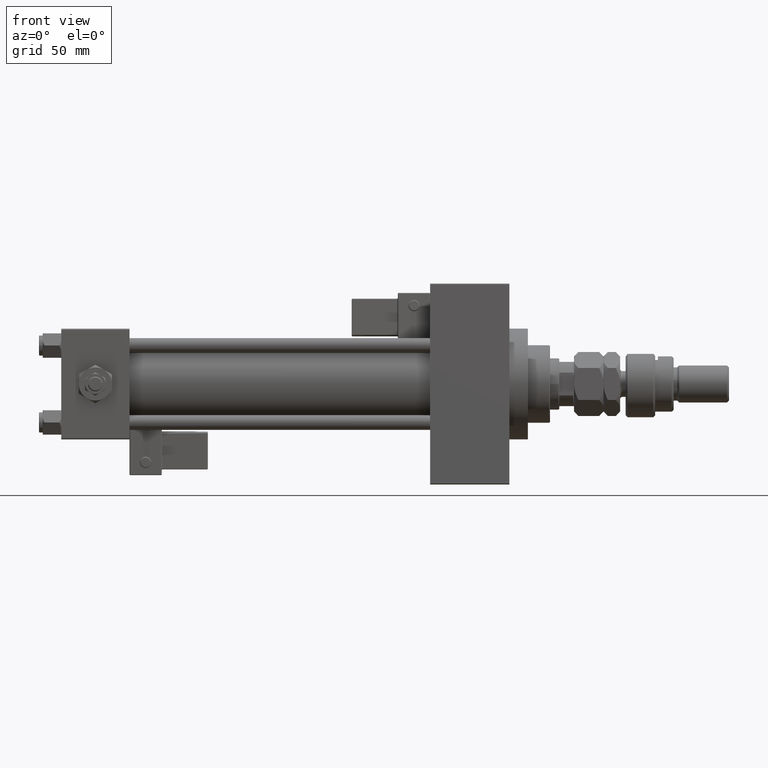
[diagram: clean part render]
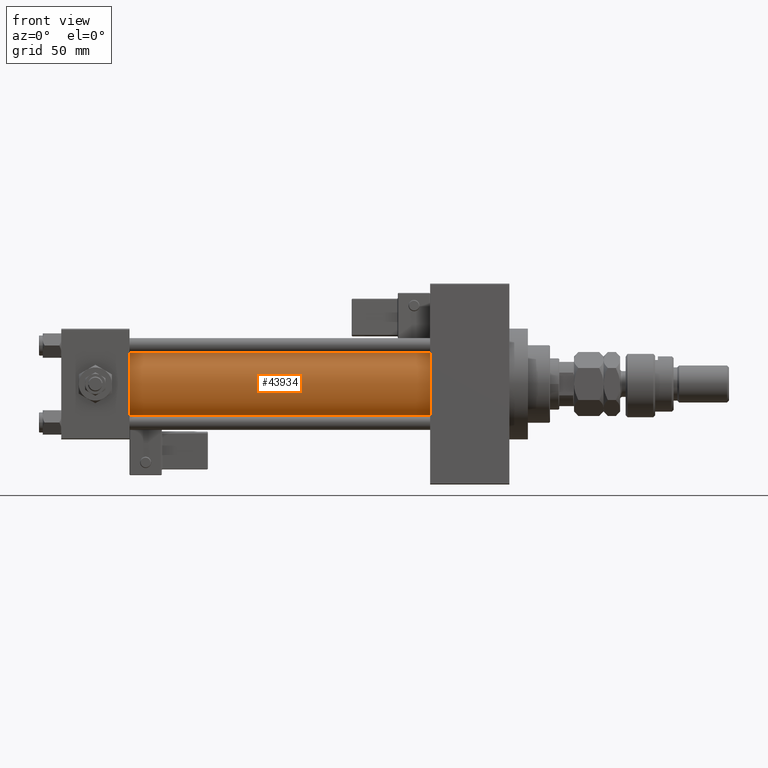
[diagram: same view with one face highlighted and labeled with its STEP entity id]
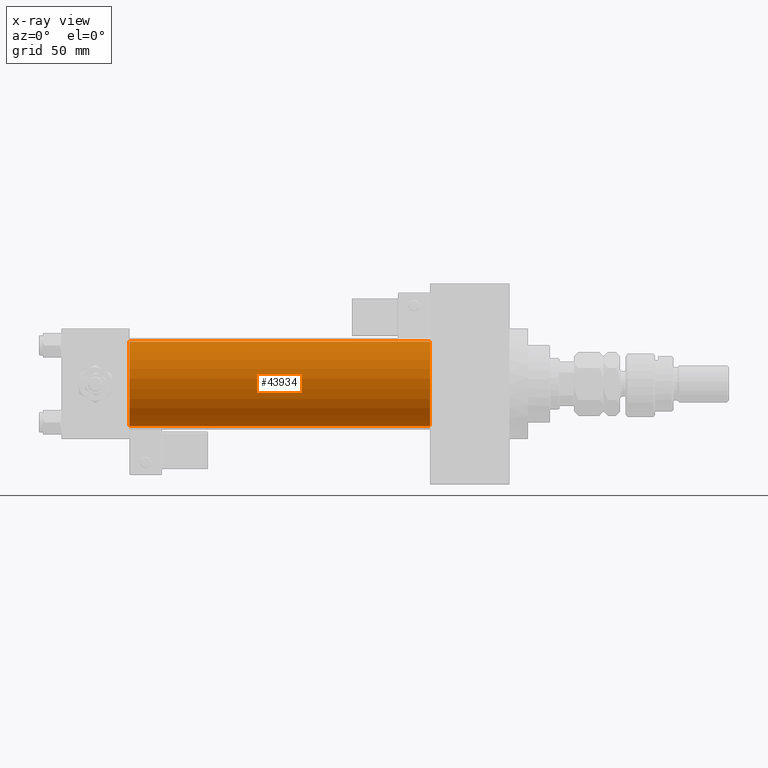
[diagram: x-ray of the same camera — body ghosted, the highlighted face saturated]
A machine part, front view. The second image highlights one B-rep face of the part: STEP entity #43934.
The next image is the same camera in x-ray: the body ghosted, the highlighted face saturated — about 0% of this face is hidden behind the body in this view.
In plain terms, the highlighted cylindrical surface (partial cylindrical patch) has radius 23 mm, axis along (-1, -0, -0).
Its self-contained STEP definition (entity closure, byte-faithful):
#477 = CARTESIAN_POINT ( 'NONE',  ( 200.0000000000000000, -2.602085213965210642E-15, 23.00000000000000000 ) ) ;
#2661 = ORIENTED_EDGE ( 'NONE', *, *, #48792, .F. ) ;
#4728 = ORIENTED_EDGE ( 'NONE', *, *, #11292, .T. ) ;
#5257 = CIRCLE ( 'NONE', #11368, 23.00000000000000000 ) ;
#6998 = CYLINDRICAL_SURFACE ( 'NONE', #9553, 23.00000000000000000 ) ;
#9280 = ORIENTED_EDGE ( 'NONE', *, *, #37602, .F. ) ;
#9553 = AXIS2_PLACEMENT_3D ( 'NONE', #31052, #51835, #23680 ) ;
#10890 = AXIS2_PLACEMENT_3D ( 'NONE', #22723, #31182, #47593 ) ;
#11292 = EDGE_CURVE ( 'NONE', #18889, #46175, #41285, .T. ) ;
#11368 = AXIS2_PLACEMENT_3D ( 'NONE', #36507, #19580, #40607 ) ;
#12800 = VECTOR ( 'NONE', #53857, 1000.000000000000000 ) ;
#13482 = CIRCLE ( 'NONE', #10890, 23.00000000000000000 ) ;
#17288 = CARTESIAN_POINT ( 'NONE',  ( 200.0000000000000000, 2.146024240737016609E-16, -23.00000000000000000 ) ) ;
#18889 = VERTEX_POINT ( 'NONE', #477 ) ;
#19362 = VERTEX_POINT ( 'NONE', #39747 ) ;
#19580 = DIRECTION ( 'NONE',  ( 1.000000000000000000, 0.000000000000000000, 0.000000000000000000 ) ) ;
#20611 = CARTESIAN_POINT ( 'NONE',  ( 200.0000000000000000, 2.146024240737016609E-16, -23.00000000000000000 ) ) ;
#22141 = VERTEX_POINT ( 'NONE', #20611 ) ;
#22723 = CARTESIAN_POINT ( 'NONE',  ( 37.00000000000000711, -2.602085213965210642E-15, 0.000000000000000000 ) ) ;
#23680 = DIRECTION ( 'NONE',  ( 0.000000000000000000, 0.000000000000000000, 1.000000000000000000 ) ) ;
#24092 = EDGE_CURVE ( 'NONE', #46175, #19362, #13482, .T. ) ;
#26754 = VECTOR ( 'NONE', #50607, 1000.000000000000000 ) ;
#31052 = CARTESIAN_POINT ( 'NONE',  ( 200.0000000000000000, -2.602085213965210642E-15, 0.000000000000000000 ) ) ;
#31182 = DIRECTION ( 'NONE',  ( 1.000000000000000000, -0.000000000000000000, 0.000000000000000000 ) ) ;
#36507 = CARTESIAN_POINT ( 'NONE',  ( 200.0000000000000000, -2.602085213965210642E-15, 0.000000000000000000 ) ) ;
#36750 = ORIENTED_EDGE ( 'NONE', *, *, #24092, .T. ) ;
#37602 = EDGE_CURVE ( 'NONE', #22141, #19362, #46249, .T. ) ;
#39747 = CARTESIAN_POINT ( 'NONE',  ( 37.00000000000000711, 2.146024240737016609E-16, -23.00000000000000000 ) ) ;
#40607 = DIRECTION ( 'NONE',  ( 0.000000000000000000, 0.000000000000000000, -1.000000000000000000 ) ) ;
#41285 = LINE ( 'NONE', #45923, #12800 ) ;
#43934 = ADVANCED_FACE ( 'NONE', ( #44450 ), #6998, .T. ) ;
#44450 = FACE_OUTER_BOUND ( 'NONE', #44889, .T. ) ;
#44889 = EDGE_LOOP ( 'NONE', ( #9280, #2661, #4728, #36750 ) ) ;
#45923 = CARTESIAN_POINT ( 'NONE',  ( 200.0000000000000000, -2.602085213965210642E-15, 23.00000000000000000 ) ) ;
#46175 = VERTEX_POINT ( 'NONE', #52873 ) ;
#46249 = LINE ( 'NONE', #17288, #26754 ) ;
#47593 = DIRECTION ( 'NONE',  ( 0.000000000000000000, 0.000000000000000000, 1.000000000000000000 ) ) ;
#48792 = EDGE_CURVE ( 'NONE', #18889, #22141, #5257, .T. ) ;
#50607 = DIRECTION ( 'NONE',  ( -1.000000000000000000, -0.000000000000000000, -0.000000000000000000 ) ) ;
#51835 = DIRECTION ( 'NONE',  ( -1.000000000000000000, -0.000000000000000000, -0.000000000000000000 ) ) ;
#52873 = CARTESIAN_POINT ( 'NONE',  ( 37.00000000000000711, -2.602085213965210642E-15, 23.00000000000000000 ) ) ;
#53857 = DIRECTION ( 'NONE',  ( -1.000000000000000000, -0.000000000000000000, -0.000000000000000000 ) ) ;